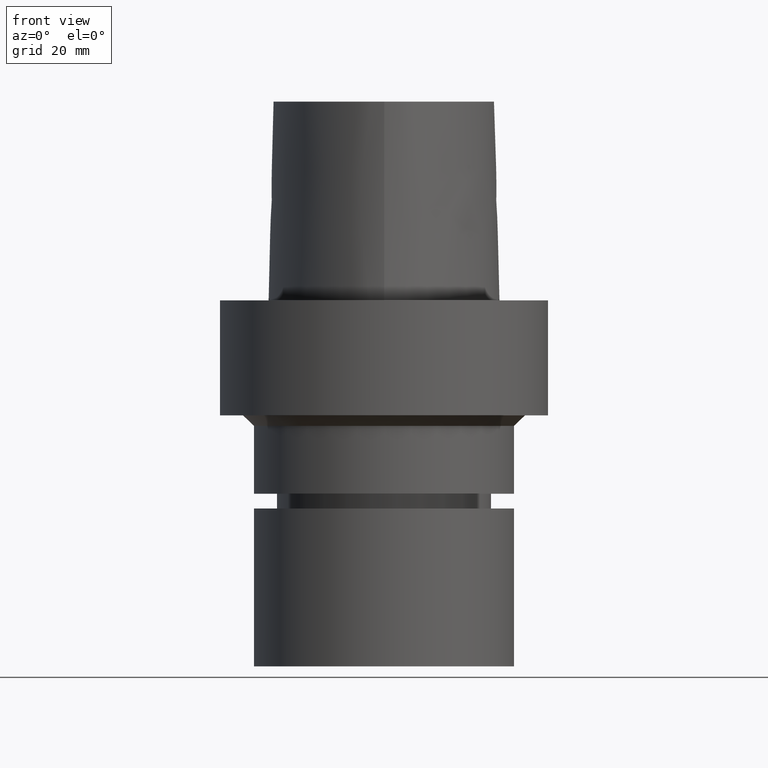
[diagram: clean part render]
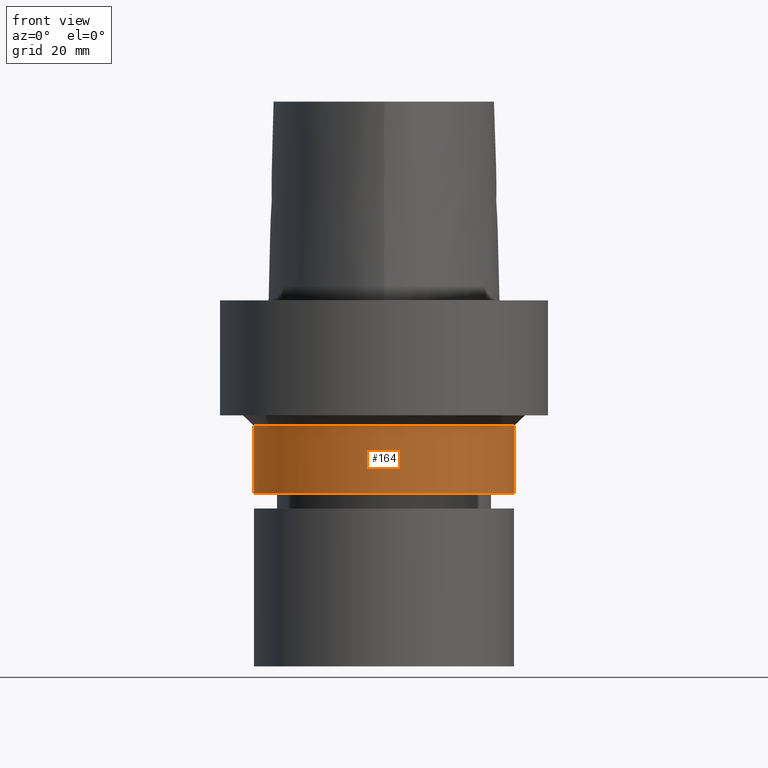
[diagram: same view with one face highlighted and labeled with its STEP entity id]
A machine part, front view. The second image highlights one B-rep face of the part: STEP entity #164.
In plain terms, the highlighted cylindrical surface (bore or boss wall) has radius 25 mm, axis along (0, 0, -1).
Its self-contained STEP definition (entity closure, byte-faithful):
#95=EDGE_CURVE('Unnamed[1]',#226,#226,#227,.T.);
#133=EDGE_CURVE('Unnamed[1]',#281,#281,#282,.T.);
#164=ADVANCED_FACE('Unnamed[1]',(#326,#327),#328,.T.);
#226=VERTEX_POINT('',#481);
#227=CIRCLE('',#482,25.0);
#281=VERTEX_POINT('',#650);
#282=CIRCLE('',#651,25.0);
#326=FACE_BOUND('',#723,.T.);
#327=FACE_BOUND('',#724,.T.);
#328=CYLINDRICAL_SURFACE('',#725,25.0);
#481=CARTESIAN_POINT('',(2.2656062267659E-015,25.0,-37.0001575694037));
#482=AXIS2_PLACEMENT_3D('',#773,#774,#775);
#650=CARTESIAN_POINT('',(1.46957615897682E-015,25.0,-24.0));
#651=AXIS2_PLACEMENT_3D('',#827,#828,#829);
#723=EDGE_LOOP('',(#875));
#724=EDGE_LOOP('',(#876));
#725=AXIS2_PLACEMENT_3D('',#877,#878,#879);
#773=CARTESIAN_POINT('',(2.2656062267659E-015,4.53121245353179E-015,-37.0001575694037));
#774=DIRECTION('',(6.12323399573677E-017,1.22464679914735E-016,-1.0));
#775=DIRECTION('',(-1.23259516440783E-032,1.0,1.22464679914735E-016));
#827=CARTESIAN_POINT('',(1.46957615897682E-015,2.93915231795365E-015,-24.0));
#828=DIRECTION('',(6.12323399573677E-017,1.22464679914735E-016,-1.0));
#829=DIRECTION('',(-1.23259516440783E-032,1.0,1.22464679914735E-016));
#875=ORIENTED_EDGE('',*,*,#95,.F.);
#876=ORIENTED_EDGE('',*,*,#133,.T.);
#877=CARTESIAN_POINT('',(1.86759119287136E-015,3.73518238574272E-015,-30.5000787847018));
#878=DIRECTION('',(6.12323399573677E-017,1.22464679914735E-016,-1.0));
#879=DIRECTION('',(-1.23259516440783E-032,1.0,1.22464679914735E-016));